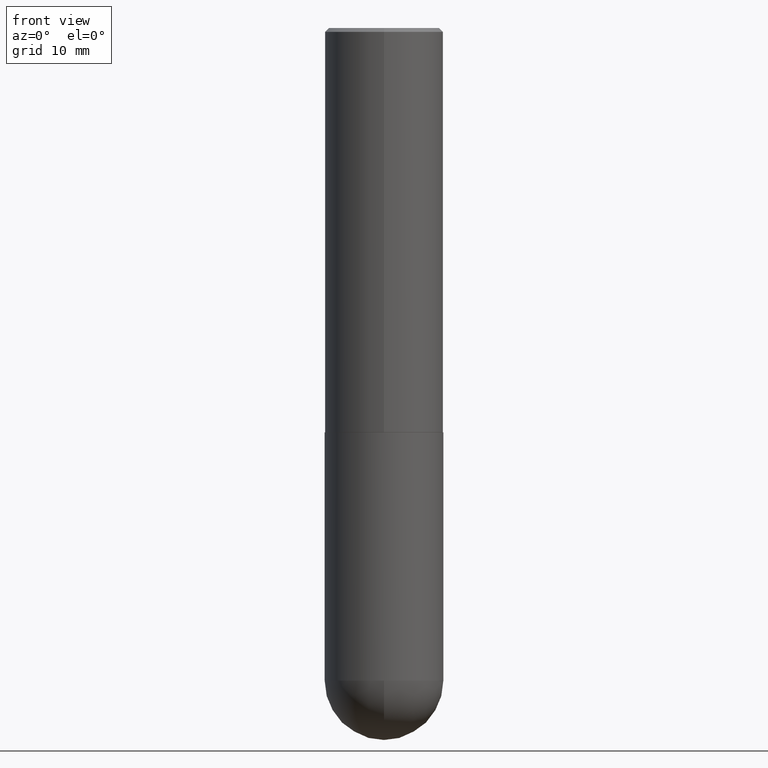
[diagram: clean part render]
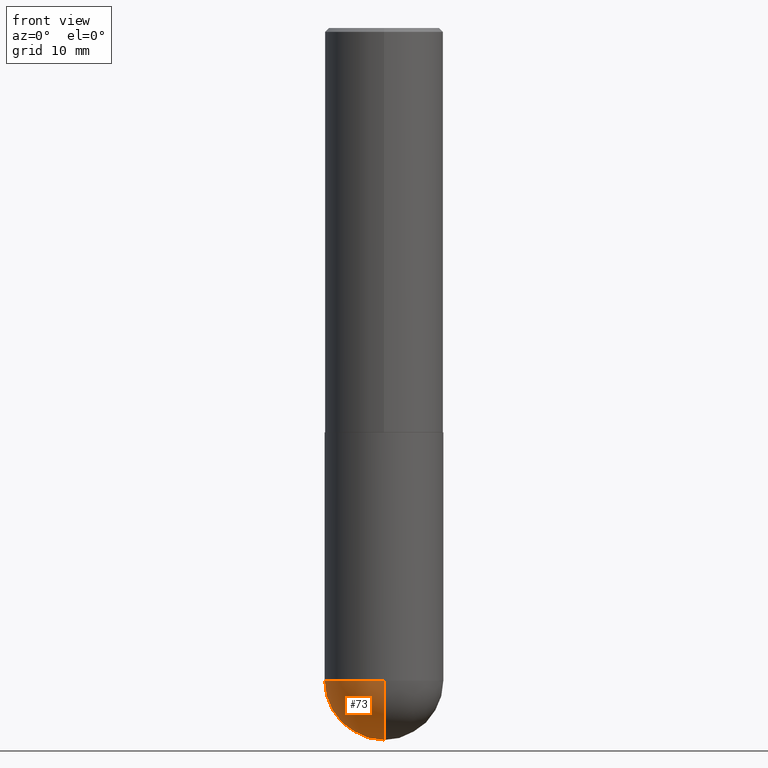
[diagram: same view with one face highlighted and labeled with its STEP entity id]
A machine part, front view. The second image highlights one B-rep face of the part: STEP entity #73.
In plain terms, the highlighted spherical surface has radius 7.9375 mm.
Its self-contained STEP definition (entity closure, byte-faithful):
#2 = EDGE_CURVE ( 'NONE', #362, #18, #363, .T. ) ;
#12 = VERTEX_POINT ( 'NONE', #248 ) ;
#18 = VERTEX_POINT ( 'NONE', #240 ) ;
#22 = ORIENTED_EDGE ( 'NONE', *, *, #158, .F. ) ;
#38 = EDGE_CURVE ( 'NONE', #12, #18, #178, .T. ) ;
#41 = AXIS2_PLACEMENT_3D ( 'NONE', #287, #222, #224 ) ;
#46 = DIRECTION ( 'NONE',  ( -7.105427357601000281E-15, -1.000000000000000000, 0.000000000000000000 ) ) ;
#71 = AXIS2_PLACEMENT_3D ( 'NONE', #219, #288, #349 ) ;
#73 = ADVANCED_FACE ( 'NONE', ( #355 ), #94, .T. ) ;
#92 = DIRECTION ( 'NONE',  ( 1.000000000000000000, -6.982962677686269077E-15, 0.000000000000000000 ) ) ;
#94 = SPHERICAL_SURFACE ( 'NONE', #41, 0.3125000000000002776 ) ;
#110 = AXIS2_PLACEMENT_3D ( 'NONE', #279, #268, #46 ) ;
#127 = CIRCLE ( 'NONE', #263, 0.3125000000000000000 ) ;
#143 = ORIENTED_EDGE ( 'NONE', *, *, #38, .F. ) ;
#152 = DIRECTION ( 'NONE',  ( -2.445468806185136597E-29, 3.491481338843145583E-15, 1.000000000000000000 ) ) ;
#158 = EDGE_CURVE ( 'NONE', #362, #304, #400, .T. ) ;
#162 = AXIS2_PLACEMENT_3D ( 'NONE', #381, #152, #92 ) ;
#178 = CIRCLE ( 'NONE', #162, 0.3125000000000000000 ) ;
#198 = CARTESIAN_POINT ( 'NONE',  ( 2.182175836777041572E-15, 0.3124999999999878431, -3.437500000000000888 ) ) ;
#219 = CARTESIAN_POINT ( 'NONE',  ( 8.075179243347521925E-29, -1.247614947041336144E-14, -3.437500000000000000 ) ) ;
#222 = DIRECTION ( 'NONE',  ( -1.000000000000000000, 6.982962677686265922E-15, -4.883557194083112901E-29 ) ) ;
#224 = DIRECTION ( 'NONE',  ( 6.982962677686265922E-15, 1.000000000000000000, -3.496765431890253764E-15 ) ) ;
#233 = CARTESIAN_POINT ( 'NONE',  ( 8.406299021261405930E-29, -1.200196710227331114E-14, -3.437499999999999556 ) ) ;
#240 = CARTESIAN_POINT ( 'NONE',  ( -2.220446049250231828E-15, -0.3125000000000124345, -3.437499999999998668 ) ) ;
#248 = CARTESIAN_POINT ( 'NONE',  ( -0.3125000000000000000, -7.498965127754294186E-15, -3.437499999999999556 ) ) ;
#263 = AXIS2_PLACEMENT_3D ( 'NONE', #233, #297, #266 ) ;
#266 = DIRECTION ( 'NONE',  ( 1.000000000000000000, -6.982962677686269077E-15, 0.000000000000000000 ) ) ;
#268 = DIRECTION ( 'NONE',  ( -1.000000000000000000, 7.105427357601001070E-15, -4.926315508542082329E-29 ) ) ;
#279 = CARTESIAN_POINT ( 'NONE',  ( 8.075179243347521925E-29, -1.247614947041336144E-14, -3.437500000000000000 ) ) ;
#287 = CARTESIAN_POINT ( 'NONE',  ( 8.075179243347521925E-29, -1.247614947041336144E-14, -3.437500000000000000 ) ) ;
#288 = DIRECTION ( 'NONE',  ( 1.000000000000000000, -6.982962677686265922E-15, 4.883557194083112340E-29 ) ) ;
#297 = DIRECTION ( 'NONE',  ( -2.445468806185136597E-29, 3.491481338843145583E-15, 1.000000000000000000 ) ) ;
#304 = VERTEX_POINT ( 'NONE', #198 ) ;
#310 = CARTESIAN_POINT ( 'NONE',  ( 8.852750218548805549E-29, -1.354810228256516798E-14, -3.750000000000000000 ) ) ;
#320 = ORIENTED_EDGE ( 'NONE', *, *, #321, .F. ) ;
#321 = EDGE_CURVE ( 'NONE', #304, #12, #127, .T. ) ;
#349 = DIRECTION ( 'NONE',  ( 6.982962677686265922E-15, 1.000000000000000000, 0.000000000000000000 ) ) ;
#355 = FACE_OUTER_BOUND ( 'NONE', #373, .T. ) ;
#362 = VERTEX_POINT ( 'NONE', #310 ) ;
#363 = CIRCLE ( 'NONE', #110, 0.3125000000000002776 ) ;
#373 = EDGE_LOOP ( 'NONE', ( #22, #394, #143, #320 ) ) ;
#381 = CARTESIAN_POINT ( 'NONE',  ( 8.406299021261405930E-29, -1.200196710227331114E-14, -3.437499999999999556 ) ) ;
#394 = ORIENTED_EDGE ( 'NONE', *, *, #2, .T. ) ;
#400 = CIRCLE ( 'NONE', #71, 0.3125000000000002776 ) ;